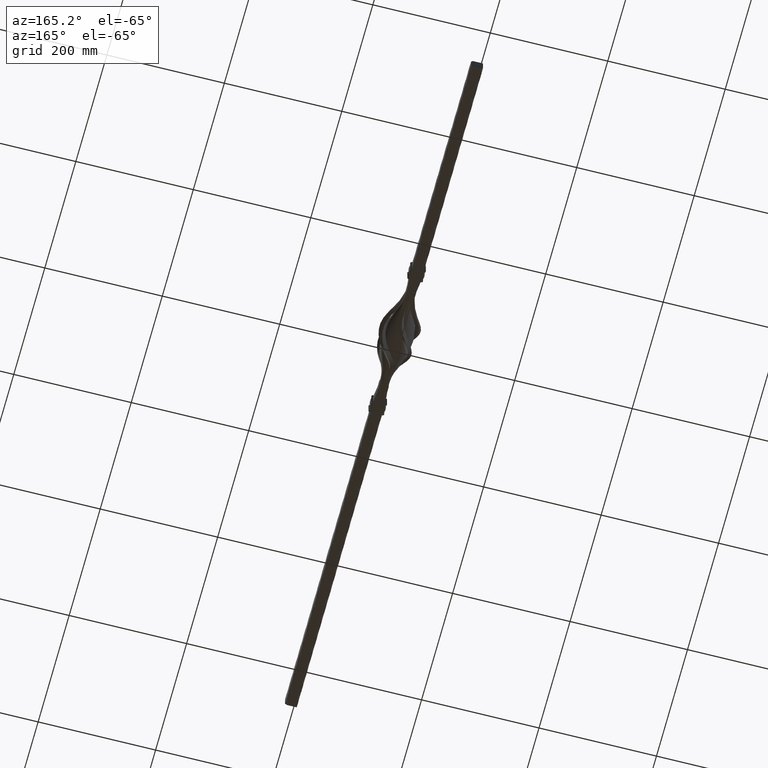
[diagram: clean part render]
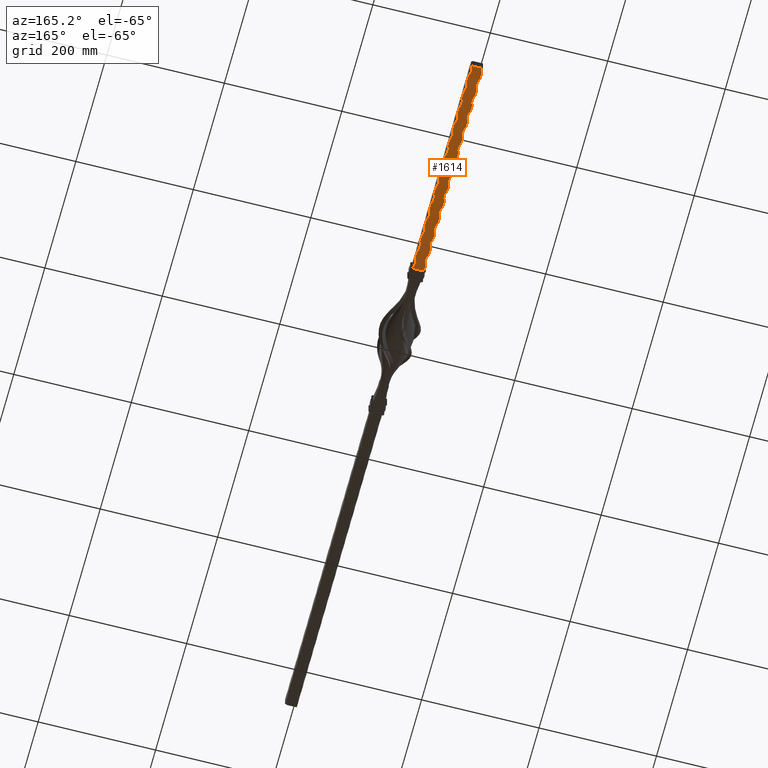
[diagram: same view with one face highlighted and labeled with its STEP entity id]
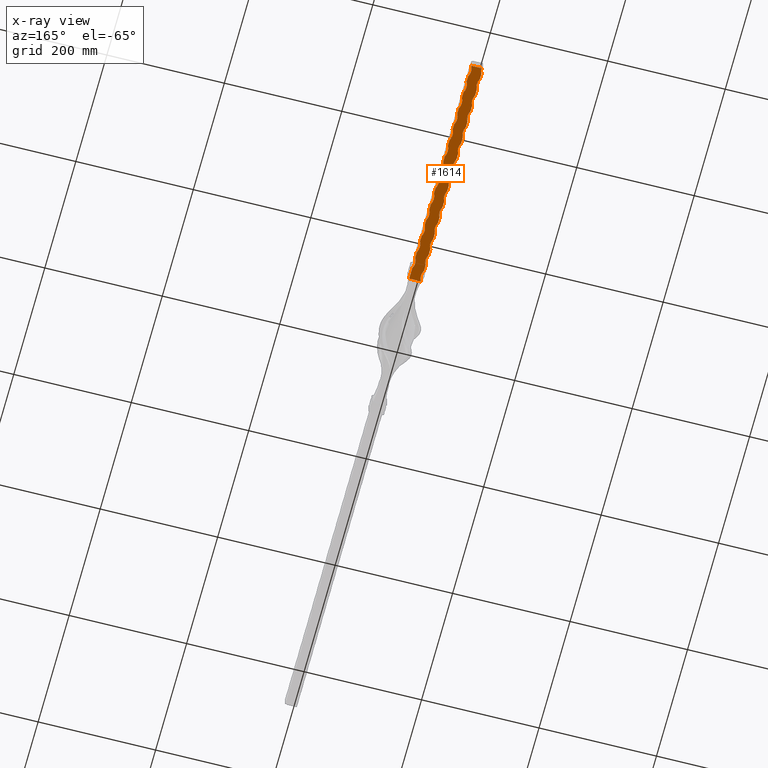
[diagram: x-ray of the same camera — body ghosted, the highlighted face saturated]
A machine part, auxiliary view. The second image highlights one B-rep face of the part: STEP entity #1614.
The next image is the same camera in x-ray: the body ghosted, the highlighted face saturated — about 0% of this face is hidden behind the body in this view.
In plain terms, the highlighted planar face has unit normal (0, -0, 1).
Its self-contained STEP definition (entity closure, byte-faithful):
#20 = DIRECTION ( 'NONE',  ( -1.000000000000000000, 0.000000000000000000, 1.632680918566404574E-16 ) ) ;
#43 = AXIS2_PLACEMENT_3D ( 'NONE', #26728, #4601, #17640 ) ;
#140 = CARTESIAN_POINT ( 'NONE',  ( -28.75000000000004263, 185.0000000000000568, -9.999999999998069100 ) ) ;
#306 = DIRECTION ( 'NONE',  ( -0.000000000000000000, -1.000000000000000000, -0.000000000000000000 ) ) ;
#312 = CARTESIAN_POINT ( 'NONE',  ( -10.00000000000000711, 265.0000000000036380, -9.999999999999994671 ) ) ;
#369 = VECTOR ( 'NONE', #27631, 1000.000000000000000 ) ;
#421 = CIRCLE ( 'NONE', #7949, 21.25000000000002487 ) ;
#451 = VECTOR ( 'NONE', #27451, 1000.000000000000000 ) ;
#457 = EDGE_CURVE ( 'NONE', #10695, #1059, #421, .T. ) ;
#654 = CIRCLE ( 'NONE', #2971, 21.25000000000002842 ) ;
#801 = DIRECTION ( 'NONE',  ( -0.000000000000000000, -1.000000000000000000, -0.000000000000000000 ) ) ;
#901 = LINE ( 'NONE', #10067, #8507 ) ;
#931 = AXIS2_PLACEMENT_3D ( 'NONE', #24076, #13034, #26292 ) ;
#999 = CARTESIAN_POINT ( 'NONE',  ( 9.999999999999998224, 130.0000000000000000, -9.999999999999994671 ) ) ;
#1059 = VERTEX_POINT ( 'NONE', #25023 ) ;
#1065 = ORIENTED_EDGE ( 'NONE', *, *, #26449, .F. ) ;
#1108 = EDGE_CURVE ( 'NONE', #24104, #27330, #24768, .T. ) ;
#1182 = CARTESIAN_POINT ( 'NONE',  ( -10.00000000000000178, 130.0000000000000000, -9.999999999999994671 ) ) ;
#1327 = CARTESIAN_POINT ( 'NONE',  ( 9.999999999999998224, 130.0000000000000000, -9.999999999999994671 ) ) ;
#1375 = VERTEX_POINT ( 'NONE', #8379 ) ;
#1389 = DIRECTION ( 'NONE',  ( 1.353084311261909534E-16, -0.000000000000000000, 1.000000000000000000 ) ) ;
#1478 = CARTESIAN_POINT ( 'NONE',  ( -10.00000000000000711, 135.0000000000036096, -9.999999999999994671 ) ) ;
#1480 = DIRECTION ( 'NONE',  ( -0.000000000000000000, -0.000000000000000000, -1.000000000000000000 ) ) ;
#1495 = ORIENTED_EDGE ( 'NONE', *, *, #19512, .T. ) ;
#1511 = VERTEX_POINT ( 'NONE', #3891 ) ;
#1514 = CARTESIAN_POINT ( 'NONE',  ( 9.999999999999998224, 285.0000000000000568, -9.999999999997998046 ) ) ;
#1518 = DIRECTION ( 'NONE',  ( -1.000000000000000000, 0.000000000000000000, 1.632680918566404574E-16 ) ) ;
#1614 = ADVANCED_FACE ( 'NONE', ( #18176 ), #14095, .F. ) ;
#1650 = ORIENTED_EDGE ( 'NONE', *, *, #13009, .T. ) ;
#1664 = LINE ( 'NONE', #16094, #23583 ) ;
#1710 = EDGE_CURVE ( 'NONE', #24297, #14352, #15713, .T. ) ;
#1862 = DIRECTION ( 'NONE',  ( -0.000000000000000000, -0.000000000000000000, -1.000000000000000000 ) ) ;
#1902 = DIRECTION ( 'NONE',  ( 1.000000000000000000, 0.000000000000000000, 0.000000000000000000 ) ) ;
#2067 = EDGE_CURVE ( 'NONE', #18528, #3792, #24349, .T. ) ;
#2080 = ORIENTED_EDGE ( 'NONE', *, *, #16391, .F. ) ;
#2273 = DIRECTION ( 'NONE',  ( -0.000000000000000000, -1.000000000000000000, -0.000000000000000000 ) ) ;
#2370 = DIRECTION ( 'NONE',  ( -0.000000000000000000, -1.000000000000000000, -0.000000000000000000 ) ) ;
#2388 = VECTOR ( 'NONE', #9152, 1000.000000000000000 ) ;
#2398 = ORIENTED_EDGE ( 'NONE', *, *, #23746, .T. ) ;
#2490 = ORIENTED_EDGE ( 'NONE', *, *, #12808, .T. ) ;
#2494 = DIRECTION ( 'NONE',  ( 1.000000000000000000, 0.000000000000000000, 0.000000000000000000 ) ) ;
#2542 = AXIS2_PLACEMENT_3D ( 'NONE', #26851, #24755, #9073 ) ;
#2597 = DIRECTION ( 'NONE',  ( -1.000000000000000000, 0.000000000000000000, 1.632680918566404574E-16 ) ) ;
#2644 = DIRECTION ( 'NONE',  ( 1.353084311261909534E-16, -0.000000000000000000, 1.000000000000000000 ) ) ;
#2656 = CARTESIAN_POINT ( 'NONE',  ( -10.00000000000000711, 465.0000000000036948, -9.999999999999994671 ) ) ;
#2670 = CARTESIAN_POINT ( 'NONE',  ( -10.00000000000000178, 130.0000000000000000, -9.999999999999994671 ) ) ;
#2689 = DIRECTION ( 'NONE',  ( -0.000000000000000000, -1.000000000000000000, -0.000000000000000000 ) ) ;
#2872 = ORIENTED_EDGE ( 'NONE', *, *, #19341, .F. ) ;
#2971 = AXIS2_PLACEMENT_3D ( 'NONE', #14927, #1389, #12683 ) ;
#3129 = EDGE_CURVE ( 'NONE', #12239, #19579, #27453, .T. ) ;
#3506 = EDGE_CURVE ( 'NONE', #1511, #16463, #654, .T. ) ;
#3513 = VERTEX_POINT ( 'NONE', #1478 ) ;
#3576 = LINE ( 'NONE', #26161, #18934 ) ;
#3707 = VERTEX_POINT ( 'NONE', #4370 ) ;
#3746 = VECTOR ( 'NONE', #25754, 1000.000000000000000 ) ;
#3792 = VERTEX_POINT ( 'NONE', #27013 ) ;
#3812 = VECTOR ( 'NONE', #8191, 1000.000000000000000 ) ;
#3836 = EDGE_CURVE ( 'NONE', #16673, #9687, #19796, .T. ) ;
#3891 = CARTESIAN_POINT ( 'NONE',  ( -10.00000000000000711, 445.0000000000036948, -9.999999999999992895 ) ) ;
#3923 = CARTESIAN_POINT ( 'NONE',  ( -10.00000000000000178, 130.0000000000000000, -9.999999999999994671 ) ) ;
#4070 = EDGE_CURVE ( 'NONE', #12060, #14352, #1664, .T. ) ;
#4174 = DIRECTION ( 'NONE',  ( -1.000000000000000000, 0.000000000000000000, 1.632680918566404574E-16 ) ) ;
#4283 = EDGE_CURVE ( 'NONE', #21634, #4560, #7568, .T. ) ;
#4286 = CARTESIAN_POINT ( 'NONE',  ( -10.00000000000000711, 505.0000000000035811, -9.999999999999992895 ) ) ;
#4304 = CARTESIAN_POINT ( 'NONE',  ( 28.75000000000003197, 265.0000000000000000, -9.999999999997671196 ) ) ;
#4327 = EDGE_CURVE ( 'NONE', #15751, #19579, #10009, .T. ) ;
#4370 = CARTESIAN_POINT ( 'NONE',  ( -10.00000000000000711, 325.0000000000036948, -9.999999999999994671 ) ) ;
#4426 = VERTEX_POINT ( 'NONE', #28727 ) ;
#4539 = VERTEX_POINT ( 'NONE', #7548 ) ;
#4560 = VERTEX_POINT ( 'NONE', #16438 ) ;
#4587 = AXIS2_PLACEMENT_3D ( 'NONE', #16190, #18233, #11714 ) ;
#4601 = DIRECTION ( 'NONE',  ( -0.000000000000000000, -0.000000000000000000, -1.000000000000000000 ) ) ;
#4658 = LINE ( 'NONE', #27232, #13021 ) ;
#4715 = VECTOR ( 'NONE', #25766, 1000.000000000000000 ) ;
#4846 = ORIENTED_EDGE ( 'NONE', *, *, #1108, .F. ) ;
#4925 = CARTESIAN_POINT ( 'NONE',  ( -28.75000000000004263, 395.0000000000000000, -9.999999999998070876 ) ) ;
#5000 = VERTEX_POINT ( 'NONE', #10275 ) ;
#5071 = EDGE_CURVE ( 'NONE', #21263, #3513, #14881, .T. ) ;
#5073 = CARTESIAN_POINT ( 'NONE',  ( 28.75000000000003197, 235.0000000000000284, -9.999999999997342570 ) ) ;
#5079 = VECTOR ( 'NONE', #13804, 1000.000000000000000 ) ;
#5145 = AXIS2_PLACEMENT_3D ( 'NONE', #5073, #7287, #24900 ) ;
#5185 = CARTESIAN_POINT ( 'NONE',  ( 28.75000000000003197, 385.0000000000000000, -9.999999999998982148 ) ) ;
#5200 = CARTESIAN_POINT ( 'NONE',  ( 9.999999999999998224, 515.0000000000000000, -9.999999999999994671 ) ) ;
#5219 = AXIS2_PLACEMENT_3D ( 'NONE', #8654, #1862, #6513 ) ;
#5275 = EDGE_CURVE ( 'NONE', #27469, #1059, #15534, .T. ) ;
#5342 = LINE ( 'NONE', #5200, #451 ) ;
#5403 = AXIS2_PLACEMENT_3D ( 'NONE', #7145, #12046, #27566 ) ;
#5533 = AXIS2_PLACEMENT_3D ( 'NONE', #16032, #24940, #11649 ) ;
#5656 = DIRECTION ( 'NONE',  ( 1.353084311261909534E-16, -0.000000000000000000, 1.000000000000000000 ) ) ;
#5723 = EDGE_CURVE ( 'NONE', #9248, #4426, #23848, .T. ) ;
#5778 = CARTESIAN_POINT ( 'NONE',  ( 10.00000000000000355, 185.0000000000000568, -9.999999999996687094 ) ) ;
#5790 = VECTOR ( 'NONE', #21055, 1000.000000000000000 ) ;
#5943 = VERTEX_POINT ( 'NONE', #10624 ) ;
#5951 = EDGE_CURVE ( 'NONE', #21089, #4539, #12178, .T. ) ;
#5966 = CIRCLE ( 'NONE', #14293, 21.25000000000002842 ) ;
#6090 = CARTESIAN_POINT ( 'NONE',  ( 9.999999999999998224, 375.0000000000000000, -9.999999999998982148 ) ) ;
#6095 = ORIENTED_EDGE ( 'NONE', *, *, #12260, .F. ) ;
#6143 = ORIENTED_EDGE ( 'NONE', *, *, #4070, .T. ) ;
#6156 = CIRCLE ( 'NONE', #5533, 21.25000000000002487 ) ;
#6304 = EDGE_CURVE ( 'NONE', #23865, #18061, #8571, .T. ) ;
#6320 = CARTESIAN_POINT ( 'NONE',  ( -10.00000000000000711, 415.0000000000036380, -9.999999999999992895 ) ) ;
#6409 = EDGE_CURVE ( 'NONE', #10580, #23772, #6156, .T. ) ;
#6472 = ORIENTED_EDGE ( 'NONE', *, *, #26654, .T. ) ;
#6487 = CIRCLE ( 'NONE', #24163, 21.25000000000002842 ) ;
#6489 = DIRECTION ( 'NONE',  ( 1.353084311261909534E-16, -0.000000000000000000, 1.000000000000000000 ) ) ;
#6500 = AXIS2_PLACEMENT_3D ( 'NONE', #6750, #13412, #1902 ) ;
#6513 = DIRECTION ( 'NONE',  ( 1.000000000000000000, 0.000000000000000000, 0.000000000000000000 ) ) ;
#6520 = DIRECTION ( 'NONE',  ( -0.000000000000000000, -0.000000000000000000, -1.000000000000000000 ) ) ;
#6594 = CARTESIAN_POINT ( 'NONE',  ( -10.00000000000000711, 475.0000000000036380, -9.999999999999992895 ) ) ;
#6714 = CARTESIAN_POINT ( 'NONE',  ( -28.75000000000004263, 125.0000000000000000, -9.999999999998069100 ) ) ;
#6750 = CARTESIAN_POINT ( 'NONE',  ( 28.75000000000003197, 505.0000000000000000, -10.00000000000029310 ) ) ;
#6761 = ORIENTED_EDGE ( 'NONE', *, *, #5275, .T. ) ;
#6853 = CARTESIAN_POINT ( 'NONE',  ( 28.75000000000003197, 415.0000000000000568, -9.999999999999308997 ) ) ;
#6859 = DIRECTION ( 'NONE',  ( 1.000000000000000000, 0.000000000000000000, 0.000000000000000000 ) ) ;
#6937 = ORIENTED_EDGE ( 'NONE', *, *, #12469, .F. ) ;
#6967 = CARTESIAN_POINT ( 'NONE',  ( 9.999999999999998224, 135.0000000000000000, -9.999999999996358468 ) ) ;
#7104 = CIRCLE ( 'NONE', #8717, 21.25000000000002842 ) ;
#7114 = CARTESIAN_POINT ( 'NONE',  ( -10.00000000000000711, 255.0000000000036664, -9.999999999999994671 ) ) ;
#7145 = CARTESIAN_POINT ( 'NONE',  ( 28.75000000000003197, 295.0000000000000568, -9.999999999997998046 ) ) ;
#7147 = DIRECTION ( 'NONE',  ( 1.353084311261909534E-16, -0.000000000000000000, 1.000000000000000000 ) ) ;
#7157 = VERTEX_POINT ( 'NONE', #4286 ) ;
#7218 = EDGE_CURVE ( 'NONE', #18660, #25946, #6487, .T. ) ;
#7252 = ORIENTED_EDGE ( 'NONE', *, *, #12887, .T. ) ;
#7287 = DIRECTION ( 'NONE',  ( -0.000000000000000000, -0.000000000000000000, -1.000000000000000000 ) ) ;
#7353 = CARTESIAN_POINT ( 'NONE',  ( -28.75000000000004263, 245.0000000000000568, -9.999999999998069100 ) ) ;
#7452 = EDGE_CURVE ( 'NONE', #14329, #3513, #12071, .T. ) ;
#7521 = EDGE_CURVE ( 'NONE', #21089, #11570, #16916, .T. ) ;
#7548 = CARTESIAN_POINT ( 'NONE',  ( 10.00000000000000355, 365.0000000000000568, -9.999999999998653522 ) ) ;
#7568 = LINE ( 'NONE', #18706, #3746 ) ;
#7582 = CARTESIAN_POINT ( 'NONE',  ( 9.999999999999998224, 255.0000000000000000, -9.999999999997671196 ) ) ;
#7595 = CARTESIAN_POINT ( 'NONE',  ( -28.75000000000004263, 515.0000000000000000, -9.999999999998070876 ) ) ;
#7633 = DIRECTION ( 'NONE',  ( -0.000000000000000000, -1.000000000000000000, -0.000000000000000000 ) ) ;
#7785 = DIRECTION ( 'NONE',  ( -0.000000000000000000, -1.000000000000000000, -0.000000000000000000 ) ) ;
#7871 = LINE ( 'NONE', #17274, #13104 ) ;
#7878 = ORIENTED_EDGE ( 'NONE', *, *, #23415, .T. ) ;
#7917 = CARTESIAN_POINT ( 'NONE',  ( -10.00000000000000711, 355.0000000000036380, -9.999999999999994671 ) ) ;
#7936 = LINE ( 'NONE', #22702, #8970 ) ;
#7949 = AXIS2_PLACEMENT_3D ( 'NONE', #6853, #15447, #2494 ) ;
#7955 = VECTOR ( 'NONE', #19290, 1000.000000000000000 ) ;
#7973 = CARTESIAN_POINT ( 'NONE',  ( -28.75000000000004263, 155.0000000000000284, -9.999999999998069100 ) ) ;
#7997 = VERTEX_POINT ( 'NONE', #7917 ) ;
#8048 = DIRECTION ( 'NONE',  ( 1.353084311261909534E-16, -0.000000000000000000, 1.000000000000000000 ) ) ;
#8191 = DIRECTION ( 'NONE',  ( -0.000000000000000000, -1.000000000000000000, -0.000000000000000000 ) ) ;
#8223 = CARTESIAN_POINT ( 'NONE',  ( -28.75000000000004263, 425.0000000000000568, -9.999999999998070876 ) ) ;
#8247 = EDGE_CURVE ( 'NONE', #12105, #14756, #27621, .T. ) ;
#8330 = VERTEX_POINT ( 'NONE', #27988 ) ;
#8334 = CARTESIAN_POINT ( 'NONE',  ( -28.75000000000004263, 335.0000000000000568, -9.999999999998069100 ) ) ;
#8357 = ORIENTED_EDGE ( 'NONE', *, *, #4327, .T. ) ;
#8379 = CARTESIAN_POINT ( 'NONE',  ( 10.00000000000000355, 155.0000000000000284, -9.999999999996358468 ) ) ;
#8428 = CARTESIAN_POINT ( 'NONE',  ( -10.00000000000000711, 385.0000000000036380, -9.999999999999992895 ) ) ;
#8488 = ORIENTED_EDGE ( 'NONE', *, *, #18780, .T. ) ;
#8507 = VECTOR ( 'NONE', #7633, 1000.000000000000000 ) ;
#8571 = CIRCLE ( 'NONE', #2542, 21.25000000000002842 ) ;
#8591 = LINE ( 'NONE', #20108, #25355 ) ;
#8610 = DIRECTION ( 'NONE',  ( 1.353084311261909534E-16, -0.000000000000000000, 1.000000000000000000 ) ) ;
#8654 = CARTESIAN_POINT ( 'NONE',  ( 28.75000000000003197, 445.0000000000000568, -9.999999999999637623 ) ) ;
#8717 = AXIS2_PLACEMENT_3D ( 'NONE', #13343, #6489, #4174 ) ;
#8970 = VECTOR ( 'NONE', #2689, 1000.000000000000000 ) ;
#9073 = DIRECTION ( 'NONE',  ( -1.000000000000000000, 0.000000000000000000, 1.632680918566404574E-16 ) ) ;
#9080 = DIRECTION ( 'NONE',  ( 1.353084311261909534E-16, -0.000000000000000000, 1.000000000000000000 ) ) ;
#9152 = DIRECTION ( 'NONE',  ( -0.000000000000000000, -1.000000000000000000, -0.000000000000000000 ) ) ;
#9234 = EDGE_CURVE ( 'NONE', #5000, #24172, #5342, .T. ) ;
#9242 = ORIENTED_EDGE ( 'NONE', *, *, #18239, .F. ) ;
#9248 = VERTEX_POINT ( 'NONE', #20684 ) ;
#9324 = CARTESIAN_POINT ( 'NONE',  ( 10.00000000000000355, 455.0000000000000568, -9.999999999999637623 ) ) ;
#9464 = EDGE_CURVE ( 'NONE', #18528, #4426, #3576, .T. ) ;
#9554 = ORIENTED_EDGE ( 'NONE', *, *, #9234, .F. ) ;
#9606 = ORIENTED_EDGE ( 'NONE', *, *, #5951, .F. ) ;
#9687 = VERTEX_POINT ( 'NONE', #13668 ) ;
#9750 = CARTESIAN_POINT ( 'NONE',  ( -10.00000000000000178, 130.0000000000000000, -9.999999999999994671 ) ) ;
#9884 = CARTESIAN_POINT ( 'NONE',  ( 9.999999999999998224, 114.9999999999999858, -9.999999999999994671 ) ) ;
#9902 = CARTESIAN_POINT ( 'NONE',  ( 10.00000000000000355, 485.0000000000000568, -9.999999999999966249 ) ) ;
#9903 = CARTESIAN_POINT ( 'NONE',  ( 9.999999999999998224, 465.0000000000000000, -9.999999999999966249 ) ) ;
#10001 = VECTOR ( 'NONE', #16898, 1000.000000000000000 ) ;
#10009 = CIRCLE ( 'NONE', #18112, 21.25000000000002842 ) ;
#10061 = ORIENTED_EDGE ( 'NONE', *, *, #4283, .F. ) ;
#10067 = CARTESIAN_POINT ( 'NONE',  ( -10.00000000000000178, 130.0000000000000000, -9.999999999999994671 ) ) ;
#10168 = CARTESIAN_POINT ( 'NONE',  ( 28.75000000000003197, 475.0000000000000568, -9.999999999999966249 ) ) ;
#10223 = EDGE_CURVE ( 'NONE', #21634, #16158, #5966, .T. ) ;
#10275 = CARTESIAN_POINT ( 'NONE',  ( 10.00000000000000355, 515.0000000000000000, -10.00000000000029310 ) ) ;
#10309 = DIRECTION ( 'NONE',  ( -1.000000000000000000, 0.000000000000000000, 1.632680918566404574E-16 ) ) ;
#10338 = CARTESIAN_POINT ( 'NONE',  ( -10.00000000000000711, 495.0000000000036380, -9.999999999999994671 ) ) ;
#10453 = AXIS2_PLACEMENT_3D ( 'NONE', #5185, #16581, #20664 ) ;
#10580 = VERTEX_POINT ( 'NONE', #23948 ) ;
#10620 = DIRECTION ( 'NONE',  ( 1.000000000000000000, 0.000000000000000000, 0.000000000000000000 ) ) ;
#10624 = CARTESIAN_POINT ( 'NONE',  ( -10.00000000000000711, 195.0000000000036664, -9.999999999999994671 ) ) ;
#10695 = VERTEX_POINT ( 'NONE', #26734 ) ;
#10713 = ORIENTED_EDGE ( 'NONE', *, *, #9464, .T. ) ;
#10717 = CARTESIAN_POINT ( 'NONE',  ( -10.00000000000000178, 130.0000000000000000, -9.999999999999994671 ) ) ;
#10766 = AXIS2_PLACEMENT_3D ( 'NONE', #22992, #18662, #24963 ) ;
#10871 = ORIENTED_EDGE ( 'NONE', *, *, #7218, .T. ) ;
#11144 = CARTESIAN_POINT ( 'NONE',  ( -10.00000000000000711, 235.0000000000036380, -9.999999999999994671 ) ) ;
#11146 = LINE ( 'NONE', #21344, #3812 ) ;
#11527 = CARTESIAN_POINT ( 'NONE',  ( 9.999999999999998224, 130.0000000000000000, -9.999999999999994671 ) ) ;
#11543 = EDGE_CURVE ( 'NONE', #14329, #27330, #26077, .T. ) ;
#11545 = EDGE_LOOP ( 'NONE', ( #4846, #7878, #27691, #8357, #12065, #8488, #24528, #18986, #6095, #10871, #25724, #18180, #11607, #11868, #2872, #14110, #10061, #25976, #6937, #15975, #18052, #17825, #25790, #25132, #9554, #26754, #6143, #15895, #13016, #2080, #6761, #26298, #18928, #26663, #1495, #9606, #17827, #19400, #27829, #1065, #1650, #21041, #10713, #25074, #2398, #25623, #2490, #21731, #28765, #9242, #6472, #7252, #15194, #27115, #26794 ) ) ;
#11570 = VERTEX_POINT ( 'NONE', #19636 ) ;
#11591 = CIRCLE ( 'NONE', #10453, 21.25000000000002487 ) ;
#11607 = ORIENTED_EDGE ( 'NONE', *, *, #14835, .F. ) ;
#11649 = DIRECTION ( 'NONE',  ( 1.000000000000000000, 0.000000000000000000, 0.000000000000000000 ) ) ;
#11655 = VERTEX_POINT ( 'NONE', #6090 ) ;
#11683 = AXIS2_PLACEMENT_3D ( 'NONE', #4925, #27066, #16324 ) ;
#11714 = DIRECTION ( 'NONE',  ( 1.000000000000000000, 0.000000000000000000, 0.000000000000000000 ) ) ;
#11868 = ORIENTED_EDGE ( 'NONE', *, *, #26356, .T. ) ;
#11887 = CIRCLE ( 'NONE', #11683, 21.25000000000002842 ) ;
#11992 = VECTOR ( 'NONE', #801, 1000.000000000000000 ) ;
#12044 = DIRECTION ( 'NONE',  ( 1.000000000000000000, 0.000000000000000000, 0.000000000000000000 ) ) ;
#12046 = DIRECTION ( 'NONE',  ( -0.000000000000000000, -0.000000000000000000, -1.000000000000000000 ) ) ;
#12060 = VERTEX_POINT ( 'NONE', #14960 ) ;
#12065 = ORIENTED_EDGE ( 'NONE', *, *, #3129, .F. ) ;
#12071 = LINE ( 'NONE', #26551, #5079 ) ;
#12105 = VERTEX_POINT ( 'NONE', #16999 ) ;
#12111 = CARTESIAN_POINT ( 'NONE',  ( -10.00000000000000178, 130.0000000000000000, -9.999999999999994671 ) ) ;
#12142 = VECTOR ( 'NONE', #27531, 1000.000000000000000 ) ;
#12178 = CIRCLE ( 'NONE', #4587, 21.25000000000002487 ) ;
#12187 = CARTESIAN_POINT ( 'NONE',  ( 9.999999999999998224, 130.0000000000000000, -9.999999999999994671 ) ) ;
#12239 = VERTEX_POINT ( 'NONE', #11144 ) ;
#12260 = EDGE_CURVE ( 'NONE', #18660, #18061, #28822, .T. ) ;
#12290 = AXIS2_PLACEMENT_3D ( 'NONE', #10168, #25349, #12044 ) ;
#12469 = EDGE_CURVE ( 'NONE', #1511, #16158, #13191, .T. ) ;
#12683 = DIRECTION ( 'NONE',  ( -1.000000000000000000, 0.000000000000000000, 1.632680918566404574E-16 ) ) ;
#12799 = CIRCLE ( 'NONE', #931, 21.25000000000002842 ) ;
#12808 = EDGE_CURVE ( 'NONE', #16673, #23772, #27053, .T. ) ;
#12887 = EDGE_CURVE ( 'NONE', #26617, #21263, #8591, .T. ) ;
#13009 = EDGE_CURVE ( 'NONE', #20130, #3792, #7936, .T. ) ;
#13016 = ORIENTED_EDGE ( 'NONE', *, *, #19339, .T. ) ;
#13021 = VECTOR ( 'NONE', #20663, 1000.000000000000000 ) ;
#13034 = DIRECTION ( 'NONE',  ( 1.353084311261909534E-16, -0.000000000000000000, 1.000000000000000000 ) ) ;
#13104 = VECTOR ( 'NONE', #14961, 1000.000000000000000 ) ;
#13165 = VECTOR ( 'NONE', #13446, 1000.000000000000000 ) ;
#13191 = LINE ( 'NONE', #10717, #7955 ) ;
#13306 = CARTESIAN_POINT ( 'NONE',  ( 10.00000000000000355, 395.0000000000000000, -9.999999999998982148 ) ) ;
#13343 = CARTESIAN_POINT ( 'NONE',  ( -28.75000000000004263, 485.0000000000000568, -9.999999999998070876 ) ) ;
#13412 = DIRECTION ( 'NONE',  ( -0.000000000000000000, -0.000000000000000000, -1.000000000000000000 ) ) ;
#13446 = DIRECTION ( 'NONE',  ( -0.000000000000000000, -1.000000000000000000, -0.000000000000000000 ) ) ;
#13543 = CARTESIAN_POINT ( 'NONE',  ( 9.999999999999998224, 130.0000000000000000, -9.999999999999994671 ) ) ;
#13620 = EDGE_CURVE ( 'NONE', #11655, #15921, #11591, .T. ) ;
#13668 = CARTESIAN_POINT ( 'NONE',  ( 10.00000000000000355, 215.0000000000000853, -9.999999999997013944 ) ) ;
#13804 = DIRECTION ( 'NONE',  ( -0.000000000000000000, -1.000000000000000000, -0.000000000000000000 ) ) ;
#14095 = PLANE ( 'NONE',  #10766 ) ;
#14110 = ORIENTED_EDGE ( 'NONE', *, *, #23507, .T. ) ;
#14180 = LINE ( 'NONE', #28783, #20422 ) ;
#14293 = AXIS2_PLACEMENT_3D ( 'NONE', #8223, #8048, #1518 ) ;
#14329 = VERTEX_POINT ( 'NONE', #16638 ) ;
#14352 = VERTEX_POINT ( 'NONE', #9902 ) ;
#14492 = VECTOR ( 'NONE', #7785, 1000.000000000000000 ) ;
#14496 = VECTOR ( 'NONE', #16535, 1000.000000000000000 ) ;
#14756 = VERTEX_POINT ( 'NONE', #20879 ) ;
#14835 = EDGE_CURVE ( 'NONE', #7997, #8330, #901, .T. ) ;
#14881 = CIRCLE ( 'NONE', #20532, 21.25000000000002842 ) ;
#14910 = CARTESIAN_POINT ( 'NONE',  ( -10.00000000000000711, 225.0000000000036948, -9.999999999999994671 ) ) ;
#14927 = CARTESIAN_POINT ( 'NONE',  ( -28.75000000000004263, 455.0000000000000568, -9.999999999998070876 ) ) ;
#14960 = CARTESIAN_POINT ( 'NONE',  ( 9.999999999999998224, 495.0000000000000000, -10.00000000000029310 ) ) ;
#14961 = DIRECTION ( 'NONE',  ( -0.000000000000000000, -1.000000000000000000, -0.000000000000000000 ) ) ;
#15194 = ORIENTED_EDGE ( 'NONE', *, *, #5071, .T. ) ;
#15447 = DIRECTION ( 'NONE',  ( -0.000000000000000000, -0.000000000000000000, -1.000000000000000000 ) ) ;
#15534 = LINE ( 'NONE', #18635, #5790 ) ;
#15575 = EDGE_CURVE ( 'NONE', #23810, #18207, #7104, .T. ) ;
#15713 = CIRCLE ( 'NONE', #12290, 21.25000000000002487 ) ;
#15751 = VERTEX_POINT ( 'NONE', #22934 ) ;
#15895 = ORIENTED_EDGE ( 'NONE', *, *, #1710, .F. ) ;
#15921 = VERTEX_POINT ( 'NONE', #13306 ) ;
#15975 = ORIENTED_EDGE ( 'NONE', *, *, #3506, .T. ) ;
#16032 = CARTESIAN_POINT ( 'NONE',  ( 28.75000000000003197, 175.0000000000000568, -9.999999999996687094 ) ) ;
#16094 = CARTESIAN_POINT ( 'NONE',  ( 9.999999999999998224, 130.0000000000000000, -9.999999999999994671 ) ) ;
#16100 = DIRECTION ( 'NONE',  ( -1.000000000000000000, 0.000000000000000000, 1.632680918566404574E-16 ) ) ;
#16158 = VERTEX_POINT ( 'NONE', #27752 ) ;
#16159 = CARTESIAN_POINT ( 'NONE',  ( -10.00000000000000178, 130.0000000000000000, -9.999999999999994671 ) ) ;
#16190 = CARTESIAN_POINT ( 'NONE',  ( 28.75000000000003197, 355.0000000000000568, -9.999999999998653522 ) ) ;
#16193 = CARTESIAN_POINT ( 'NONE',  ( -28.75000000000004263, 305.0000000000000568, -9.999999999998069100 ) ) ;
#16296 = DIRECTION ( 'NONE',  ( -0.000000000000000000, -1.000000000000000000, -0.000000000000000000 ) ) ;
#16324 = DIRECTION ( 'NONE',  ( -1.000000000000000000, 0.000000000000000000, 1.632680918566404574E-16 ) ) ;
#16391 = EDGE_CURVE ( 'NONE', #27469, #25332, #17565, .T. ) ;
#16438 = CARTESIAN_POINT ( 'NONE',  ( -10.00000000000000711, 405.0000000000036380, -9.999999999999994671 ) ) ;
#16463 = VERTEX_POINT ( 'NONE', #2656 ) ;
#16479 = VERTEX_POINT ( 'NONE', #7114 ) ;
#16517 = EDGE_CURVE ( 'NONE', #15751, #5943, #24639, .T. ) ;
#16535 = DIRECTION ( 'NONE',  ( -0.000000000000000000, -1.000000000000000000, -0.000000000000000000 ) ) ;
#16579 = LINE ( 'NONE', #1182, #4715 ) ;
#16581 = DIRECTION ( 'NONE',  ( -0.000000000000000000, -0.000000000000000000, -1.000000000000000000 ) ) ;
#16638 = CARTESIAN_POINT ( 'NONE',  ( -10.00000000000000711, 145.0000000000036380, -9.999999999999994671 ) ) ;
#16673 = VERTEX_POINT ( 'NONE', #18918 ) ;
#16698 = VERTEX_POINT ( 'NONE', #8428 ) ;
#16702 = CIRCLE ( 'NONE', #25572, 21.25000000000002842 ) ;
#16898 = DIRECTION ( 'NONE',  ( -0.000000000000000000, -1.000000000000000000, -0.000000000000000000 ) ) ;
#16916 = LINE ( 'NONE', #17953, #23500 ) ;
#16999 = CARTESIAN_POINT ( 'NONE',  ( 9.999999999999998224, 315.0000000000000568, -9.999999999998326672 ) ) ;
#17183 = EDGE_CURVE ( 'NONE', #12060, #5000, #24146, .T. ) ;
#17191 = VECTOR ( 'NONE', #16296, 1000.000000000000000 ) ;
#17239 = CARTESIAN_POINT ( 'NONE',  ( 28.75000000000003197, 145.0000000000000284, -9.999999999996358468 ) ) ;
#17274 = CARTESIAN_POINT ( 'NONE',  ( -10.00000000000000178, 130.0000000000000000, -9.999999999999994671 ) ) ;
#17463 = DIRECTION ( 'NONE',  ( -0.000000000000000000, -1.000000000000000000, -0.000000000000000000 ) ) ;
#17565 = CIRCLE ( 'NONE', #5219, 21.25000000000002487 ) ;
#17640 = DIRECTION ( 'NONE',  ( 1.000000000000000000, 0.000000000000000000, 0.000000000000000000 ) ) ;
#17825 = ORIENTED_EDGE ( 'NONE', *, *, #15575, .T. ) ;
#17827 = ORIENTED_EDGE ( 'NONE', *, *, #7521, .T. ) ;
#17829 = CARTESIAN_POINT ( 'NONE',  ( -10.00000000000000711, 375.0000000000036380, -9.999999999999994671 ) ) ;
#17875 = CARTESIAN_POINT ( 'NONE',  ( 28.75000000000003197, 205.0000000000000568, -9.999999999997013944 ) ) ;
#17894 = DIRECTION ( 'NONE',  ( 1.353084311261909534E-16, -0.000000000000000000, 1.000000000000000000 ) ) ;
#17953 = CARTESIAN_POINT ( 'NONE',  ( 9.999999999999998224, 130.0000000000000000, -9.999999999999994671 ) ) ;
#18009 = DIRECTION ( 'NONE',  ( -0.000000000000000000, -1.000000000000000000, -0.000000000000000000 ) ) ;
#18052 = ORIENTED_EDGE ( 'NONE', *, *, #28249, .F. ) ;
#18061 = VERTEX_POINT ( 'NONE', #24937 ) ;
#18066 = DIRECTION ( 'NONE',  ( -1.000000000000000000, 0.000000000000000000, 1.632680918566404574E-16 ) ) ;
#18112 = AXIS2_PLACEMENT_3D ( 'NONE', #19347, #28547, #23695 ) ;
#18176 = FACE_OUTER_BOUND ( 'NONE', #11545, .T. ) ;
#18180 = ORIENTED_EDGE ( 'NONE', *, *, #24045, .T. ) ;
#18207 = VERTEX_POINT ( 'NONE', #10338 ) ;
#18233 = DIRECTION ( 'NONE',  ( -0.000000000000000000, -0.000000000000000000, -1.000000000000000000 ) ) ;
#18239 = EDGE_CURVE ( 'NONE', #22943, #1375, #26637, .T. ) ;
#18528 = VERTEX_POINT ( 'NONE', #7582 ) ;
#18635 = CARTESIAN_POINT ( 'NONE',  ( 9.999999999999998224, 130.0000000000000000, -9.999999999999994671 ) ) ;
#18660 = VERTEX_POINT ( 'NONE', #28725 ) ;
#18662 = DIRECTION ( 'NONE',  ( 0.000000000000000000, -0.000000000000000000, 1.000000000000000000 ) ) ;
#18706 = CARTESIAN_POINT ( 'NONE',  ( -10.00000000000000178, 130.0000000000000000, -9.999999999999994671 ) ) ;
#18780 = EDGE_CURVE ( 'NONE', #12239, #16479, #16702, .T. ) ;
#18913 = CARTESIAN_POINT ( 'NONE',  ( 9.999999999999998224, 345.0000000000000568, -9.999999999998653522 ) ) ;
#18918 = CARTESIAN_POINT ( 'NONE',  ( 9.999999999999998224, 195.0000000000000568, -9.999999999997013944 ) ) ;
#18928 = ORIENTED_EDGE ( 'NONE', *, *, #26832, .T. ) ;
#18934 = VECTOR ( 'NONE', #28394, 1000.000000000000000 ) ;
#18986 = ORIENTED_EDGE ( 'NONE', *, *, #6304, .T. ) ;
#19290 = DIRECTION ( 'NONE',  ( -0.000000000000000000, -1.000000000000000000, -0.000000000000000000 ) ) ;
#19339 = EDGE_CURVE ( 'NONE', #24297, #25332, #25199, .T. ) ;
#19341 = EDGE_CURVE ( 'NONE', #16698, #20915, #23083, .T. ) ;
#19347 = CARTESIAN_POINT ( 'NONE',  ( -28.75000000000004263, 215.0000000000000853, -9.999999999998069100 ) ) ;
#19400 = ORIENTED_EDGE ( 'NONE', *, *, #20807, .F. ) ;
#19466 = EDGE_CURVE ( 'NONE', #3707, #25946, #16579, .T. ) ;
#19512 = EDGE_CURVE ( 'NONE', #11655, #4539, #20388, .T. ) ;
#19579 = VERTEX_POINT ( 'NONE', #14910 ) ;
#19636 = CARTESIAN_POINT ( 'NONE',  ( 10.00000000000000355, 335.0000000000000568, -9.999999999998326672 ) ) ;
#19732 = CIRCLE ( 'NONE', #5403, 21.25000000000002487 ) ;
#19796 = CIRCLE ( 'NONE', #26228, 21.25000000000002487 ) ;
#19844 = CIRCLE ( 'NONE', #20285, 21.25000000000002842 ) ;
#19884 = DIRECTION ( 'NONE',  ( 1.353084311261909534E-16, -0.000000000000000000, 1.000000000000000000 ) ) ;
#19992 = VECTOR ( 'NONE', #18009, 1000.000000000000000 ) ;
#20108 = CARTESIAN_POINT ( 'NONE',  ( -10.00000000000000178, 114.9999999999999858, -9.999999999999994671 ) ) ;
#20130 = VERTEX_POINT ( 'NONE', #1514 ) ;
#20179 = VECTOR ( 'NONE', #17463, 1000.000000000000000 ) ;
#20266 = AXIS2_PLACEMENT_3D ( 'NONE', #7973, #5656, #10309 ) ;
#20285 = AXIS2_PLACEMENT_3D ( 'NONE', #8334, #17894, #22247 ) ;
#20364 = AXIS2_PLACEMENT_3D ( 'NONE', #17239, #1480, #10620 ) ;
#20388 = LINE ( 'NONE', #999, #14492 ) ;
#20405 = DIRECTION ( 'NONE',  ( -1.000000000000000000, -0.000000000000000000, -0.000000000000000000 ) ) ;
#20418 = DIRECTION ( 'NONE',  ( -0.000000000000000000, -0.000000000000000000, -1.000000000000000000 ) ) ;
#20422 = VECTOR ( 'NONE', #22184, 1000.000000000000000 ) ;
#20532 = AXIS2_PLACEMENT_3D ( 'NONE', #6714, #19884, #20 ) ;
#20613 = AXIS2_PLACEMENT_3D ( 'NONE', #140, #9080, #18066 ) ;
#20663 = DIRECTION ( 'NONE',  ( -0.000000000000000000, -1.000000000000000000, -0.000000000000000000 ) ) ;
#20664 = DIRECTION ( 'NONE',  ( 1.000000000000000000, 0.000000000000000000, 0.000000000000000000 ) ) ;
#20684 = CARTESIAN_POINT ( 'NONE',  ( 9.999999999999998224, 225.0000000000000284, -9.999999999997342570 ) ) ;
#20807 = EDGE_CURVE ( 'NONE', #12105, #11570, #26377, .T. ) ;
#20879 = CARTESIAN_POINT ( 'NONE',  ( 10.00000000000000355, 305.0000000000000568, -9.999999999997998046 ) ) ;
#20915 = VERTEX_POINT ( 'NONE', #17829 ) ;
#21037 = EDGE_CURVE ( 'NONE', #23865, #16479, #4658, .T. ) ;
#21041 = ORIENTED_EDGE ( 'NONE', *, *, #2067, .F. ) ;
#21055 = DIRECTION ( 'NONE',  ( -0.000000000000000000, -1.000000000000000000, -0.000000000000000000 ) ) ;
#21089 = VERTEX_POINT ( 'NONE', #18913 ) ;
#21263 = VERTEX_POINT ( 'NONE', #22050 ) ;
#21344 = CARTESIAN_POINT ( 'NONE',  ( 9.999999999999998224, 130.0000000000000000, -9.999999999999994671 ) ) ;
#21634 = VERTEX_POINT ( 'NONE', #6320 ) ;
#21656 = EDGE_CURVE ( 'NONE', #7157, #24172, #27241, .T. ) ;
#21731 = ORIENTED_EDGE ( 'NONE', *, *, #6409, .F. ) ;
#21759 = CARTESIAN_POINT ( 'NONE',  ( -10.00000000000000711, 175.0000000000036664, -9.999999999999994671 ) ) ;
#22050 = CARTESIAN_POINT ( 'NONE',  ( -10.00000000000000178, 114.9999999999999858, -9.999999999999994671 ) ) ;
#22092 = DIRECTION ( 'NONE',  ( 1.000000000000000000, 0.000000000000000000, 0.000000000000000000 ) ) ;
#22103 = AXIS2_PLACEMENT_3D ( 'NONE', #4304, #6520, #22092 ) ;
#22184 = DIRECTION ( 'NONE',  ( -0.000000000000000000, -1.000000000000000000, -0.000000000000000000 ) ) ;
#22247 = DIRECTION ( 'NONE',  ( -1.000000000000000000, 0.000000000000000000, 1.632680918566404574E-16 ) ) ;
#22252 = CARTESIAN_POINT ( 'NONE',  ( -10.00000000000000711, 165.0000000000036380, -9.999999999999994671 ) ) ;
#22338 = DIRECTION ( 'NONE',  ( -1.000000000000000000, 0.000000000000000000, 1.632680918566404574E-16 ) ) ;
#22671 = CARTESIAN_POINT ( 'NONE',  ( -10.00000000000000178, 130.0000000000000000, -9.999999999999994671 ) ) ;
#22702 = CARTESIAN_POINT ( 'NONE',  ( 9.999999999999998224, 130.0000000000000000, -9.999999999999994671 ) ) ;
#22756 = CARTESIAN_POINT ( 'NONE',  ( 9.999999999999998224, 130.0000000000000000, -9.999999999999994671 ) ) ;
#22931 = VECTOR ( 'NONE', #2370, 1000.000000000000000 ) ;
#22934 = CARTESIAN_POINT ( 'NONE',  ( -10.00000000000000711, 205.0000000000036664, -9.999999999999994671 ) ) ;
#22943 = VERTEX_POINT ( 'NONE', #6967 ) ;
#22992 = CARTESIAN_POINT ( 'NONE',  ( 9.999999999999998224, 130.0000000000000000, -9.999999999999994671 ) ) ;
#23083 = LINE ( 'NONE', #22671, #17191 ) ;
#23415 = EDGE_CURVE ( 'NONE', #24104, #5943, #26775, .T. ) ;
#23500 = VECTOR ( 'NONE', #2273, 1000.000000000000000 ) ;
#23507 = EDGE_CURVE ( 'NONE', #16698, #4560, #11887, .T. ) ;
#23583 = VECTOR ( 'NONE', #306, 1000.000000000000000 ) ;
#23695 = DIRECTION ( 'NONE',  ( -1.000000000000000000, 0.000000000000000000, 1.632680918566404574E-16 ) ) ;
#23746 = EDGE_CURVE ( 'NONE', #9248, #9687, #11146, .T. ) ;
#23772 = VERTEX_POINT ( 'NONE', #5778 ) ;
#23810 = VERTEX_POINT ( 'NONE', #6594 ) ;
#23848 = CIRCLE ( 'NONE', #5145, 21.25000000000002487 ) ;
#23865 = VERTEX_POINT ( 'NONE', #312 ) ;
#23898 = LINE ( 'NONE', #1327, #10001 ) ;
#23948 = CARTESIAN_POINT ( 'NONE',  ( 9.999999999999998224, 165.0000000000000284, -9.999999999996687094 ) ) ;
#24045 = EDGE_CURVE ( 'NONE', #3707, #8330, #19844, .T. ) ;
#24076 = CARTESIAN_POINT ( 'NONE',  ( -28.75000000000004263, 365.0000000000000568, -9.999999999998069100 ) ) ;
#24104 = VERTEX_POINT ( 'NONE', #21759 ) ;
#24146 = CIRCLE ( 'NONE', #6500, 21.25000000000002487 ) ;
#24163 = AXIS2_PLACEMENT_3D ( 'NONE', #16193, #2644, #16100 ) ;
#24172 = VERTEX_POINT ( 'NONE', #24702 ) ;
#24297 = VERTEX_POINT ( 'NONE', #9903 ) ;
#24349 = CIRCLE ( 'NONE', #22103, 21.25000000000002487 ) ;
#24528 = ORIENTED_EDGE ( 'NONE', *, *, #21037, .F. ) ;
#24639 = LINE ( 'NONE', #9750, #12142 ) ;
#24702 = CARTESIAN_POINT ( 'NONE',  ( -7.500000000000009770, 515.0000000000000000, -9.999999999998074429 ) ) ;
#24755 = DIRECTION ( 'NONE',  ( 1.353084311261909534E-16, -0.000000000000000000, 1.000000000000000000 ) ) ;
#24768 = LINE ( 'NONE', #12111, #369 ) ;
#24900 = DIRECTION ( 'NONE',  ( 1.000000000000000000, 0.000000000000000000, 0.000000000000000000 ) ) ;
#24915 = EDGE_CURVE ( 'NONE', #10580, #1375, #27075, .T. ) ;
#24925 = LINE ( 'NONE', #16159, #14496 ) ;
#24937 = CARTESIAN_POINT ( 'NONE',  ( -10.00000000000000711, 285.0000000000036380, -9.999999999999994671 ) ) ;
#24940 = DIRECTION ( 'NONE',  ( -0.000000000000000000, -0.000000000000000000, -1.000000000000000000 ) ) ;
#24963 = DIRECTION ( 'NONE',  ( 1.000000000000000000, 0.000000000000000000, -0.000000000000000000 ) ) ;
#25023 = CARTESIAN_POINT ( 'NONE',  ( 10.00000000000000355, 425.0000000000000568, -9.999999999999308997 ) ) ;
#25074 = ORIENTED_EDGE ( 'NONE', *, *, #5723, .F. ) ;
#25132 = ORIENTED_EDGE ( 'NONE', *, *, #21656, .T. ) ;
#25199 = LINE ( 'NONE', #22756, #11992 ) ;
#25332 = VERTEX_POINT ( 'NONE', #9324 ) ;
#25349 = DIRECTION ( 'NONE',  ( -0.000000000000000000, -0.000000000000000000, -1.000000000000000000 ) ) ;
#25355 = VECTOR ( 'NONE', #20405, 1000.000000000000000 ) ;
#25572 = AXIS2_PLACEMENT_3D ( 'NONE', #7353, #7147, #2597 ) ;
#25623 = ORIENTED_EDGE ( 'NONE', *, *, #3836, .F. ) ;
#25724 = ORIENTED_EDGE ( 'NONE', *, *, #19466, .F. ) ;
#25754 = DIRECTION ( 'NONE',  ( -0.000000000000000000, -1.000000000000000000, -0.000000000000000000 ) ) ;
#25766 = DIRECTION ( 'NONE',  ( -0.000000000000000000, -1.000000000000000000, -0.000000000000000000 ) ) ;
#25790 = ORIENTED_EDGE ( 'NONE', *, *, #28131, .F. ) ;
#25946 = VERTEX_POINT ( 'NONE', #28758 ) ;
#25976 = ORIENTED_EDGE ( 'NONE', *, *, #10223, .T. ) ;
#26077 = CIRCLE ( 'NONE', #20266, 21.25000000000002842 ) ;
#26161 = CARTESIAN_POINT ( 'NONE',  ( 9.999999999999998224, 130.0000000000000000, -9.999999999999994671 ) ) ;
#26228 = AXIS2_PLACEMENT_3D ( 'NONE', #17875, #20418, #6859 ) ;
#26292 = DIRECTION ( 'NONE',  ( -1.000000000000000000, 0.000000000000000000, 1.632680918566404574E-16 ) ) ;
#26298 = ORIENTED_EDGE ( 'NONE', *, *, #457, .F. ) ;
#26356 = EDGE_CURVE ( 'NONE', #7997, #20915, #12799, .T. ) ;
#26377 = CIRCLE ( 'NONE', #43, 21.25000000000002487 ) ;
#26449 = EDGE_CURVE ( 'NONE', #20130, #14756, #19732, .T. ) ;
#26551 = CARTESIAN_POINT ( 'NONE',  ( -10.00000000000000178, 130.0000000000000000, -9.999999999999994671 ) ) ;
#26617 = VERTEX_POINT ( 'NONE', #9884 ) ;
#26637 = CIRCLE ( 'NONE', #20364, 21.25000000000002487 ) ;
#26654 = EDGE_CURVE ( 'NONE', #22943, #26617, #23898, .T. ) ;
#26663 = ORIENTED_EDGE ( 'NONE', *, *, #13620, .F. ) ;
#26728 = CARTESIAN_POINT ( 'NONE',  ( 28.75000000000003197, 325.0000000000000568, -9.999999999998326672 ) ) ;
#26734 = CARTESIAN_POINT ( 'NONE',  ( 9.999999999999998224, 405.0000000000000000, -9.999999999999308997 ) ) ;
#26754 = ORIENTED_EDGE ( 'NONE', *, *, #17183, .F. ) ;
#26775 = CIRCLE ( 'NONE', #20613, 21.25000000000002842 ) ;
#26794 = ORIENTED_EDGE ( 'NONE', *, *, #11543, .T. ) ;
#26832 = EDGE_CURVE ( 'NONE', #10695, #15921, #14180, .T. ) ;
#26851 = CARTESIAN_POINT ( 'NONE',  ( -28.75000000000004263, 275.0000000000000000, -9.999999999998069100 ) ) ;
#27004 = CARTESIAN_POINT ( 'NONE',  ( 9.999999999999998224, 435.0000000000000568, -9.999999999999637623 ) ) ;
#27013 = CARTESIAN_POINT ( 'NONE',  ( 10.00000000000000355, 275.0000000000000000, -9.999999999997671196 ) ) ;
#27053 = LINE ( 'NONE', #12187, #13165 ) ;
#27066 = DIRECTION ( 'NONE',  ( 1.353084311261909534E-16, -0.000000000000000000, 1.000000000000000000 ) ) ;
#27075 = LINE ( 'NONE', #11527, #2388 ) ;
#27093 = AXIS2_PLACEMENT_3D ( 'NONE', #7595, #8610, #22338 ) ;
#27115 = ORIENTED_EDGE ( 'NONE', *, *, #7452, .F. ) ;
#27232 = CARTESIAN_POINT ( 'NONE',  ( -10.00000000000000178, 130.0000000000000000, -9.999999999999994671 ) ) ;
#27241 = CIRCLE ( 'NONE', #27093, 21.25000000000002842 ) ;
#27330 = VERTEX_POINT ( 'NONE', #22252 ) ;
#27451 = DIRECTION ( 'NONE',  ( -1.000000000000000000, 0.000000000000000000, 0.000000000000000000 ) ) ;
#27453 = LINE ( 'NONE', #3923, #20179 ) ;
#27469 = VERTEX_POINT ( 'NONE', #27004 ) ;
#27531 = DIRECTION ( 'NONE',  ( -0.000000000000000000, -1.000000000000000000, -0.000000000000000000 ) ) ;
#27566 = DIRECTION ( 'NONE',  ( 1.000000000000000000, 0.000000000000000000, 0.000000000000000000 ) ) ;
#27621 = LINE ( 'NONE', #13543, #19992 ) ;
#27631 = DIRECTION ( 'NONE',  ( -0.000000000000000000, -1.000000000000000000, -0.000000000000000000 ) ) ;
#27691 = ORIENTED_EDGE ( 'NONE', *, *, #16517, .F. ) ;
#27752 = CARTESIAN_POINT ( 'NONE',  ( -10.00000000000000711, 435.0000000000036380, -9.999999999999994671 ) ) ;
#27829 = ORIENTED_EDGE ( 'NONE', *, *, #8247, .T. ) ;
#27988 = CARTESIAN_POINT ( 'NONE',  ( -10.00000000000000711, 345.0000000000036948, -9.999999999999994671 ) ) ;
#28131 = EDGE_CURVE ( 'NONE', #7157, #18207, #24925, .T. ) ;
#28249 = EDGE_CURVE ( 'NONE', #23810, #16463, #7871, .T. ) ;
#28394 = DIRECTION ( 'NONE',  ( -0.000000000000000000, -1.000000000000000000, -0.000000000000000000 ) ) ;
#28547 = DIRECTION ( 'NONE',  ( 1.353084311261909534E-16, -0.000000000000000000, 1.000000000000000000 ) ) ;
#28725 = CARTESIAN_POINT ( 'NONE',  ( -10.00000000000000711, 295.0000000000036380, -9.999999999999994671 ) ) ;
#28727 = CARTESIAN_POINT ( 'NONE',  ( 10.00000000000000355, 245.0000000000000568, -9.999999999997342570 ) ) ;
#28758 = CARTESIAN_POINT ( 'NONE',  ( -10.00000000000000711, 315.0000000000036380, -9.999999999999994671 ) ) ;
#28765 = ORIENTED_EDGE ( 'NONE', *, *, #24915, .T. ) ;
#28783 = CARTESIAN_POINT ( 'NONE',  ( 9.999999999999998224, 130.0000000000000000, -9.999999999999994671 ) ) ;
#28822 = LINE ( 'NONE', #2670, #22931 ) ;